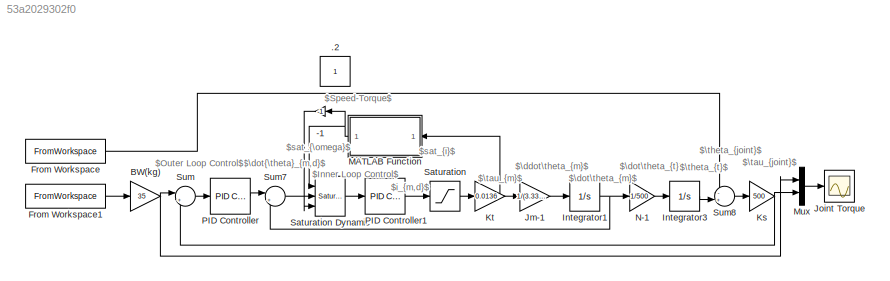
MODEL slx_53a2029302f0
KIND model
CONFIG AbsTol = auto
CONFIG EnableMultiTasking = off
CONFIG FixedStep = .002
CONFIG MaxStep = auto
CONFIG MinStep = auto
CONFIG RelTol = 1e-3
CONFIG SampleTimeConstraint = Unconstrained
CONFIG SolverName = VariableStepAuto
CONFIG StartTime = 0.0
CONFIG StopTime = 3.6
BLOCK [Gain] -1
  Gain = -1
BLOCK [Constant] .2
  IOType = siggen
BLOCK [Gain] BW(kg)
  Gain = 35
BLOCK [FromWorkspace] From Workspace
  SampleTime = .002
  VariableName = ANKLE_POSITION
BLOCK [FromWorkspace] From Workspace1
  SampleTime = .002
  VariableName = ANKLE_TORQUE
BLOCK [Integrator] Integrator1
  Ports = [1, 1]
BLOCK [Integrator] Integrator3
  Ports = [1, 1]
BLOCK [Gain] Jm-1
  Gain = 1/(3.3300e-06)
BLOCK [Scope] Joint Torque
  Floating = off
  NumInputPorts = 1
  Ports = [1]
  ScopeSpecificationString = Simulink.scopes.TimeScopeBlockCfg('CurrentConfiguration', extmgr.ConfigurationSet(extmgr.Configuration('Core','General UI',true,'FigureColor',[1 1 1]),extmgr.Configuration('Core','Source UI',true),extmgr.Configuration('Sources','WiredSimulink',true),extmgr.Configuration('Visuals','Time Domain',true,'SerializedDisplays',{struct('MinYLimReal','-57.16763','MaxYLimReal','16.7659','YLabelReal','Torque ...<+2175ch>
BLOCK [Gain] Ks
  Gain = 500
BLOCK [Gain] Kt
  Gain = 0.0136
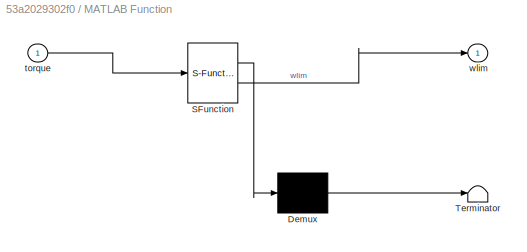
BLOCK [SubSystem] MATLAB Function
  ErrorFcn = Stateflow.Translate.translate
  PermitHierarchicalResolution = ExplicitOnly
  Ports = [1, 1]
  RequestExecContextInheritance = off
  SFBlockType = MATLAB Function
  TreatAsAtomicUnit = on
BLOCK [Demux] MATLAB Function/ Demux 
  Outputs = 1
  Ports = [1, 1]
BLOCK [S-Function] MATLAB Function/ SFunction 
  EnableBusSupport = on
  FunctionName = sf_sfun
  PortCounts = [1 2]
  Ports = [1, 2]
  SFcnIsStateOwnerBlock = off
  SFunctionDeploymentMode = off
  Tag = Stateflow S-Function 2
BLOCK [Terminator] MATLAB Function/ Terminator 
BLOCK [Inport] MATLAB Function/torque
BLOCK [Outport] MATLAB Function/wlim
  VectorParamsAs1DForOutWhenUnconnected = off
BLOCK [Mux] Mux
  DisplayOption = bar
  Inputs = 2
  NameLocation = top
  Ports = [2, 1]
BLOCK [Gain] N-1
  Gain = 1/500
BLOCK [Reference] PID Controller  REF=pid_lib/PID Controller
  Ports = [1, 1]
  SourceBlock = pid_lib/PID Controller
  SourceProductBaseCode = SL
  SourceType = PID 1dof
BLOCK [Reference] PID Controller1  REF=pid_lib/PID Controller
  Ports = [1, 1]
  SourceBlock = pid_lib/PID Controller
  SourceProductBaseCode = SL
  SourceType = PID 1dof
BLOCK [Saturate] Saturation
  LowerLimit = -30
  UpperLimit = 30
BLOCK [Reference] Saturation Dynamic  REF=simulink/Discontinuities/Saturation
Dynamic
  Ports = [3, 1]
  SourceBlock = simulink/Discontinuities/Saturation\nDynamic
  SourceProductBaseCode = SL
  SourceType = Saturation Dynamic
BLOCK [Sum] Sum
  Inputs = |+-
  Ports = [2, 1]
BLOCK [Sum] Sum7
  Inputs = |+-
  Ports = [2, 1]
BLOCK [Sum] Sum8
  Inputs = -+|
  Ports = [2, 1]
ANNOTATION (root): $Outer Loop Control$
ANNOTATION (root): $Speed-Torque$
ANNOTATION (root): $Inner Loop Control$
ANNOTATION (root): $\ddot\theta_{m}$
ANNOTATION (root): $\dot\theta_{m}$
ANNOTATION (root): $\dot\theta_{t}$
ANNOTATION (root): $\dot{\theta}_{m,d}$
ANNOTATION (root): $\tau_{joint}$
ANNOTATION (root): $\tau_{m}$
ANNOTATION (root): $\theta_{joint}$
ANNOTATION (root): $\theta_{t}$
ANNOTATION (root): $i_{m,d}$
ANNOTATION (root): $sat_{\omega}$
ANNOTATION (root): $sat_{i}$
LINE -1:1 -> Saturation Dynamic:3
NET BW(kg):1 -> Mux:1, Sum:1
LINE From Workspace1:1 -> BW(kg):1
LINE From Workspace:1 -> Sum8:1
NET Integrator1:1 -> N-1:1, Sum7:2
LINE Integrator3:1 -> Sum8:2
LINE Jm-1:1 -> Integrator1:1
NET Ks:1 -> Mux:2, Sum:2
NET Kt:1 -> Jm-1:1, MATLAB Function:1
NET MATLAB Function:1 -> -1:1, Saturation Dynamic:1
LINE Mux:1 -> Joint Torque:1
LINE N-1:1 -> Integrator3:1
LINE PID Controller1:1 -> Saturation:1
LINE PID Controller:1 -> Sum7:1
LINE Saturation Dynamic:1 -> PID Controller1:1
LINE Saturation:1 -> Kt:1
LINE Sum7:1 -> Saturation Dynamic:2
LINE Sum8:1 -> Ks:1
LINE Sum:1 -> PID Controller:1
note: NET lines group one-source signal fan-out (src -> all destinations, sorted); 1:1 wires keep LINE
CHART MATLAB Function states=1 transitions=1
  STATE_LABEL 'eML_blk_kernel()'
  STATE_LABEL 'SCRIPT:\nfunction wlim = fcn(torque)\n%#codegen\n\nV = 3.6*6;\nkt = .0136;\nR = .102;\n\nwlim = (V/kt)-(R*torque/(kt^2));\n'
CHART  states=0 transitions=0
